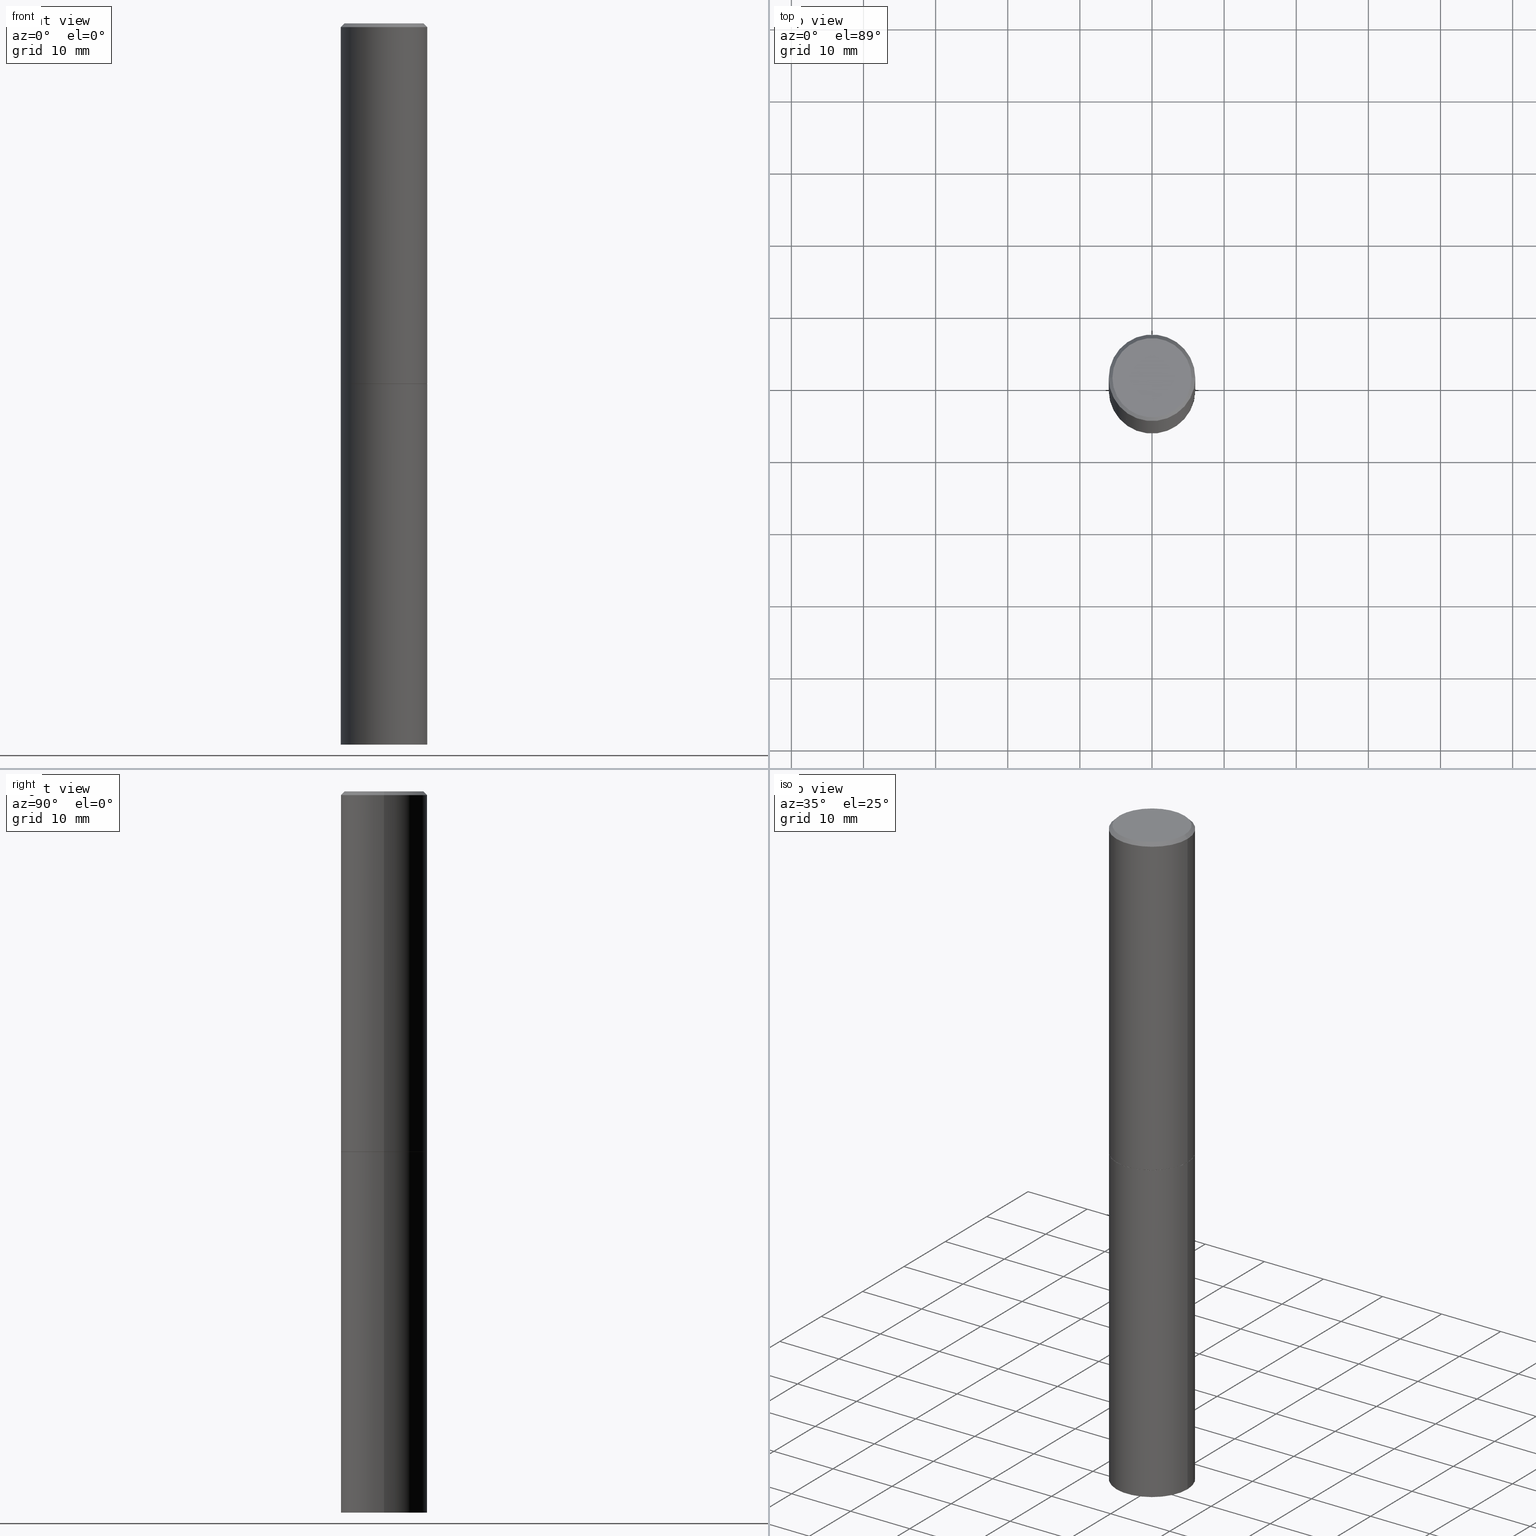
[diagram: canonical four-view strip — front | top / right | iso, engineering-drawing reading convention]
A machine part, canonical four-view strip (front | top / right | iso — engineering-drawing reading convention). The complete STEP part file that produces these views, byte-faithful:
ISO-10303-21;
HEADER;
FILE_DESCRIPTION (( 'STEP AP203' ),
    '1' );
FILE_NAME ('49446.STEP',
    '2024-02-28T21:28:15',
    ( '' ),
    ( '' ),
    'SwSTEP 2.0',
    'SolidWorks 2023',
    '' );
FILE_SCHEMA (( 'CONFIG_CONTROL_DESIGN' ));
ENDSEC;

DATA;
#1 = ORIENTED_EDGE ( 'NONE', *, *, #50, .T. ) ;
#2 = ADVANCED_BREP_SHAPE_REPRESENTATION ( '49446', ( #176, #311, #78 ), #264 ) ;
#3 = EDGE_CURVE ( 'NONE', #123, #167, #146, .T. ) ;
#4 = CARTESIAN_POINT ( 'NONE',  ( -0.2362000000000000210, -1.791357638610017633E-15, -1.967500000000000027 ) ) ;
#5 = APPLICATION_PROTOCOL_DEFINITION ( 'international standard', 'config_control_design', 1994, #75 ) ;
#6 = DIRECTION ( 'NONE',  ( -2.445468806185136597E-29, 3.491481338843145583E-15, 1.000000000000000000 ) ) ;
#7 = ORIENTED_EDGE ( 'NONE', *, *, #217, .T. ) ;
#8 = DIRECTION ( 'NONE',  ( 1.000000000000000000, -6.982962677686265133E-15, 0.000000000000000000 ) ) ;
#9 = AXIS2_PLACEMENT_3D ( 'NONE', #127, #222, #254 ) ;
#10 = CARTESIAN_POINT ( 'NONE',  ( -0.2161999999999997257, 1.544631344304200197E-15, 4.268512490089730842E-18 ) ) ;
#11 = PERSON_AND_ORGANIZATION ( #357, #312 ) ;
#12 = PLANE ( 'NONE',  #284 ) ;
#13 = AXIS2_PLACEMENT_3D ( 'NONE', #169, #289, #27 ) ;
#14 = CARTESIAN_POINT ( 'NONE',  ( 4.813905344975441835E-29, -6.872981015512731707E-15, -1.968500000000000139 ) ) ;
#15 = ORIENTED_EDGE ( 'NONE', *, *, #323, .F. ) ;
#16 = ORIENTED_EDGE ( 'NONE', *, *, #193, .F. ) ;
#17 = DIRECTION ( 'NONE',  ( -2.445468806185136877E-29, 3.491481338843145188E-15, 1.000000000000000000 ) ) ;
#18 = AXIS2_PLACEMENT_3D ( 'NONE', #320, #237, #287 ) ;
#19 = APPLICATION_CONTEXT ( 'configuration controlled 3d designs of mechanical parts and assemblies' ) ;
#20 = EDGE_LOOP ( 'NONE', ( #93, #306, #129, #119 ) ) ;
#21 = CARTESIAN_POINT ( 'NONE',  ( 0.2161999999999997257, -1.586759460484350213E-15, 4.268512490111238857E-18 ) ) ;
#22 = AXIS2_PLACEMENT_3D ( 'NONE', #335, #156, #154 ) ;
#23 = ADVANCED_FACE ( 'NONE', ( #150 ), #160, .T. ) ;
#24 = ORIENTED_EDGE ( 'NONE', *, *, #208, .T. ) ;
#25 = DIRECTION ( 'NONE',  ( -2.445468806185136597E-29, 3.491481338843145583E-15, 1.000000000000000000 ) ) ;
#26 = APPLICATION_PROTOCOL_DEFINITION ( 'international standard', 'config_control_design', 1994, #19 ) ;
#27 = DIRECTION ( 'NONE',  ( 1.000000000000000000, -6.982962677686266711E-15, 4.876176775795935793E-29 ) ) ;
#28 = PERSON_AND_ORGANIZATION_ROLE ( 'classification_officer' ) ;
#29 = CONICAL_SURFACE ( 'NONE', #179, 0.2351999999999999924, 0.7853981633974141952 ) ;
#30 = APPROVAL_STATUS ( 'not_yet_approved' ) ;
#31 = DIRECTION ( 'NONE',  ( 1.000000000000000000, -6.982962677686266711E-15, 4.876176775795936353E-29 ) ) ;
#32 = APPROVAL ( #113, 'UNSPECIFIED' ) ;
#33 = CARTESIAN_POINT ( 'NONE',  ( 9.627810689950883669E-29, -1.374596203102546341E-14, -3.937000000000000277 ) ) ;
#34 = ORIENTED_EDGE ( 'NONE', *, *, #61, .F. ) ;
#35 = CARTESIAN_POINT ( 'NONE',  ( 4.813905344975441835E-29, -6.872981015512731707E-15, -1.968500000000000139 ) ) ;
#36 = CIRCLE ( 'NONE', #249, 0.2361999999999999933 ) ;
#37 = CARTESIAN_POINT ( 'NONE',  ( -0.2361999999999999933, 1.678301941865356591E-15, -1.161852468318208757E-29 ) ) ;
#38 = DIRECTION ( 'NONE',  ( -0.7071067811865232589, 7.493145998870265808E-15, 0.7071067811865715536 ) ) ;
#39 = PRODUCT_RELATED_PRODUCT_CATEGORY ( 'detail', '', ( #106 ) ) ;
#40 = ORIENTED_EDGE ( 'NONE', *, *, #361, .F. ) ;
#41 = CLOSED_SHELL ( 'NONE', ( #74, #173, #266, #279, #23, #90, #260, #239 ) ) ;
#42 = CIRCLE ( 'NONE', #198, 0.2361999999999999933 ) ;
#43 = DIRECTION ( 'NONE',  ( -2.445468806185136597E-29, 3.491481338843145583E-15, 1.000000000000000000 ) ) ;
#44 = DIRECTION ( 'NONE',  ( 1.000000000000000000, -6.982962677686267499E-15, 4.876217060660161841E-29 ) ) ;
#45 = CARTESIAN_POINT ( 'NONE',  ( 0.2361999999999999933, -8.518865318643383648E-15, -1.967500000000000027 ) ) ;
#46 = AXIS2_PLACEMENT_3D ( 'NONE', #265, #25, #346 ) ;
#47 = ORIENTED_EDGE ( 'NONE', *, *, #277, .F. ) ;
#48 = PERSON_AND_ORGANIZATION ( #357, #312 ) ;
#49 = CARTESIAN_POINT ( 'NONE',  ( 0.2361999999999999933, -1.649375784469496131E-15, 1.151752954443000088E-29 ) ) ;
#50 = EDGE_CURVE ( 'NONE', #163, #123, #70, .T. ) ;
#51 = FACE_OUTER_BOUND ( 'NONE', #62, .T. ) ;
#52 = EDGE_LOOP ( 'NONE', ( #132, #307 ) ) ;
#53 = DIRECTION ( 'NONE',  ( 1.000000000000000000, -6.982962677686265133E-15, 0.000000000000000000 ) ) ;
#54 = DATE_TIME_ROLE ( 'classification_date' ) ;
#55 = PERSON_AND_ORGANIZATION ( #357, #312 ) ;
#56 = ADVANCED_FACE ( 'NONE', ( #322 ), #175, .T. ) ;
#57 = DIRECTION ( 'NONE',  ( -2.445468806185136597E-29, 3.491481338843145583E-15, 1.000000000000000000 ) ) ;
#58 = CARTESIAN_POINT ( 'NONE',  ( -0.2361999999999997712, 1.579546157692631452E-15, -0.02000000000000007674 ) ) ;
#59 = ORIENTED_EDGE ( 'NONE', *, *, #286, .T. ) ;
#60 = PERSON_AND_ORGANIZATION ( #357, #312 ) ;
#61 = EDGE_CURVE ( 'NONE', #167, #85, #267, .T. ) ;
#62 = EDGE_LOOP ( 'NONE', ( #69, #252 ) ) ;
#63 = APPROVAL_ROLE ( '' ) ;
#64 = DIRECTION ( 'NONE',  ( -2.445468806185136597E-29, 3.491481338843145583E-15, 1.000000000000000000 ) ) ;
#65 = EDGE_CURVE ( 'NONE', #324, #112, #291, .T. ) ;
#66 = CIRCLE ( 'NONE', #18, 0.2361999999999999933 ) ;
#67 = ORIENTED_EDGE ( 'NONE', *, *, #80, .T. ) ;
#68 = CC_DESIGN_PERSON_AND_ORGANIZATION_ASSIGNMENT ( #48, #158, ( #82 ) ) ;
#69 = ORIENTED_EDGE ( 'NONE', *, *, #161, .F. ) ;
#70 = CIRCLE ( 'NONE', #262, 0.2351999999999999924 ) ;
#71 = CIRCLE ( 'NONE', #95, 0.2361999999999997712 ) ;
#72 = PLANE ( 'NONE',  #22 ) ;
#73 = CARTESIAN_POINT ( 'NONE',  ( 0.2351999999999999924, -8.515373837304542218E-15, -1.968500000000000139 ) ) ;
#74 = ADVANCED_FACE ( 'NONE', ( #351 ), #185, .T. ) ;
#75 = APPLICATION_CONTEXT ( 'configuration controlled 3d designs of mechanical parts and assemblies' ) ;
#76 = DIRECTION ( 'NONE',  ( 1.000000000000000000, -6.982962677686267499E-15, 4.876217060660161841E-29 ) ) ;
#77 = DATE_AND_TIME ( #253, #103 ) ;
#78 = AXIS2_PLACEMENT_3D ( 'NONE', #231, #115, #263 ) ;
#79 = CARTESIAN_POINT ( 'NONE',  ( 0.2361999999999999933, -8.522356799982228232E-15, -1.968500000000000139 ) ) ;
#80 = EDGE_CURVE ( 'NONE', #83, #211, #98, .T. ) ;
#81 = ORIENTED_EDGE ( 'NONE', *, *, #217, .F. ) ;
#82 = PRODUCT_DEFINITION_FORMATION_WITH_SPECIFIED_SOURCE ( 'ANY', '', #106, .NOT_KNOWN. ) ;
#83 = VERTEX_POINT ( 'NONE', #234 ) ;
#84 = CYLINDRICAL_SURFACE ( 'NONE', #13, 0.2361999999999998545 ) ;
#85 = VERTEX_POINT ( 'NONE', #58 ) ;
#86 = PLANE ( 'NONE',  #318 ) ;
#87 = AXIS2_PLACEMENT_3D ( 'NONE', #125, #162, #76 ) ;
#88 = EDGE_LOOP ( 'NONE', ( #144, #24, #155, #194 ) ) ;
#89 = DIRECTION ( 'NONE',  ( 1.000000000000000000, -6.982962677686265133E-15, 0.000000000000000000 ) ) ;
#90 = ADVANCED_FACE ( 'NONE', ( #171 ), #29, .T. ) ;
#91 = ORIENTED_EDGE ( 'NONE', *, *, #3, .F. ) ;
#92 = CARTESIAN_POINT ( 'NONE',  ( -0.2361999999999999933, -8.631169581403741167E-15, -1.968500000000000139 ) ) ;
#93 = ORIENTED_EDGE ( 'NONE', *, *, #356, .F. ) ;
#94 = ORIENTED_EDGE ( 'NONE', *, *, #189, .F. ) ;
#95 = AXIS2_PLACEMENT_3D ( 'NONE', #275, #99, #274 ) ;
#96 = DIRECTION ( 'NONE',  ( -2.445468806185136597E-29, 3.491481338843145583E-15, 1.000000000000000000 ) ) ;
#97 = DIRECTION ( 'NONE',  ( 1.000000000000000000, -6.982962677686265133E-15, 0.000000000000000000 ) ) ;
#98 = CIRCLE ( 'NONE', #121, 0.2361999999999999933 ) ;
#99 = DIRECTION ( 'NONE',  ( -2.445468806185136597E-29, 3.491481338843145583E-15, 1.000000000000000000 ) ) ;
#100 = LINE ( 'NONE', #250, #299 ) ;
#101 = VERTEX_POINT ( 'NONE', #270 ) ;
#102 = DIRECTION ( 'NONE',  ( 0.7071067811865232589, -2.468850131082003836E-15, 0.7071067811865715536 ) ) ;
#103 = LOCAL_TIME ( 16, 28, 15.00000000000000000, #341 ) ;
#104 = CC_DESIGN_DATE_AND_TIME_ASSIGNMENT ( #196, #54, ( #164 ) ) ;
#105 = CARTESIAN_POINT ( 'NONE',  ( 0.2361999999999997712, -1.690279253850497193E-15, -0.02000000000000007674 ) ) ;
#106 = PRODUCT ( '49446', '49446', '', ( #200 ) ) ;
#107 = VERTEX_POINT ( 'NONE', #10 ) ;
#108 = DIRECTION ( 'NONE',  ( -2.445468806185136597E-29, 3.491481338843145583E-15, 1.000000000000000000 ) ) ;
#109 = VECTOR ( 'NONE', #38, 39.37007874015748854 ) ;
#110 = VECTOR ( 'NONE', #352, 39.37007874015748143 ) ;
#111 = CARTESIAN_POINT ( 'NONE',  ( 0.000000000000000000, 0.000000000000000000, 0.000000000000000000 ) ) ;
#112 = VERTEX_POINT ( 'NONE', #92 ) ;
#113 = APPROVAL_STATUS ( 'not_yet_approved' ) ;
#114 = DIRECTION ( 'NONE',  ( 2.438088387897960049E-29, -3.491481338843145188E-15, -1.000000000000000000 ) ) ;
#115 = DIRECTION ( 'NONE',  ( 0.000000000000000000, 0.000000000000000000, 1.000000000000000000 ) ) ;
#116 = CC_DESIGN_DATE_AND_TIME_ASSIGNMENT ( #180, #300, ( #213 ) ) ;
#117 = DIRECTION ( 'NONE',  ( -2.445468806185136597E-29, 3.491481338843145583E-15, 1.000000000000000000 ) ) ;
#118 = VECTOR ( 'NONE', #102, 39.37007874015748854 ) ;
#119 = ORIENTED_EDGE ( 'NONE', *, *, #246, .T. ) ;
#120 = LINE ( 'NONE', #37, #165 ) ;
#121 = AXIS2_PLACEMENT_3D ( 'NONE', #240, #296, #8 ) ;
#122 = DIRECTION ( 'NONE',  ( 1.000000000000000000, -6.982962677686265922E-15, 4.876176775795935793E-29 ) ) ;
#123 = VERTEX_POINT ( 'NONE', #212 ) ;
#124 = AXIS2_PLACEMENT_3D ( 'NONE', #35, #108, #330 ) ;
#125 = CARTESIAN_POINT ( 'NONE',  ( -1.043851414335219820E-46, 1.490343170380447200E-32, 4.268512490100411279E-18 ) ) ;
#126 = APPROVAL_ROLE ( '' ) ;
#127 = CARTESIAN_POINT ( 'NONE',  ( 1.649375784469592175E-15, 0.2361999999999862265, -3.937000000000001165 ) ) ;
#128 = ADVANCED_FACE ( 'NONE', ( #145 ), #86, .F. ) ;
#129 = ORIENTED_EDGE ( 'NONE', *, *, #301, .T. ) ;
#130 = PERSON_AND_ORGANIZATION ( #357, #312 ) ;
#131 = PLANE ( 'NONE',  #9 ) ;
#132 = ORIENTED_EDGE ( 'NONE', *, *, #65, .T. ) ;
#133 = AXIS2_PLACEMENT_3D ( 'NONE', #245, #187, #359 ) ;
#134 = CALENDAR_DATE ( 2024, 28, 2 ) ;
#135 = EDGE_LOOP ( 'NONE', ( #138, #81 ) ) ;
#136 =( CONVERSION_BASED_UNIT ( 'INCH', #224 ) LENGTH_UNIT ( ) NAMED_UNIT ( #202 ) );
#137 = CARTESIAN_POINT ( 'NONE',  ( 0.2351999999999999924, -8.515373837304542218E-15, -1.968500000000000139 ) ) ;
#138 = ORIENTED_EDGE ( 'NONE', *, *, #50, .F. ) ;
#139 = PERSON_AND_ORGANIZATION ( #357, #312 ) ;
#140 = DIRECTION ( 'NONE',  ( -1.000000000000000000, 6.982962677686265922E-15, -4.876176775795935793E-29 ) ) ;
#141 = AXIS2_PLACEMENT_3D ( 'NONE', #111, #64, #31 ) ;
#142 = EDGE_CURVE ( 'NONE', #112, #324, #66, .T. ) ;
#143 = DIRECTION ( 'NONE',  ( 1.000000000000000000, -6.982962677686264344E-15, 0.000000000000000000 ) ) ;
#144 = ORIENTED_EDGE ( 'NONE', *, *, #161, .T. ) ;
#145 = FACE_OUTER_BOUND ( 'NONE', #52, .T. ) ;
#146 = LINE ( 'NONE', #182, #109 ) ;
#147 = CARTESIAN_POINT ( 'NONE',  ( 4.813905344975441835E-29, -6.872981015512731707E-15, -1.968500000000000139 ) ) ;
#148 = CIRCLE ( 'NONE', #226, 0.2361999999999999933 ) ;
#149 = DIRECTION ( 'NONE',  ( 2.445468806185136597E-29, -3.491481338843145583E-15, -1.000000000000000000 ) ) ;
#150 = FACE_OUTER_BOUND ( 'NONE', #203, .T. ) ;
#151 = FACE_OUTER_BOUND ( 'NONE', #235, .T. ) ;
#152 = ADVANCED_FACE ( 'NONE', ( #327 ), #347, .T. ) ;
#153 = CALENDAR_DATE ( 2024, 28, 2 ) ;
#154 = DIRECTION ( 'NONE',  ( -1.000000000000000000, 6.982962677686265922E-15, -4.876176775795935793E-29 ) ) ;
#155 = ORIENTED_EDGE ( 'NONE', *, *, #65, .F. ) ;
#156 = DIRECTION ( 'NONE',  ( 2.438088387897960049E-29, -3.491481338843145188E-15, -1.000000000000000000 ) ) ;
#157 = DIRECTION ( 'NONE',  ( -2.445468806185136597E-29, 3.491481338843145583E-15, 1.000000000000000000 ) ) ;
#158 = PERSON_AND_ORGANIZATION_ROLE ( 'creator' ) ;
#159 = DIRECTION ( 'NONE',  ( -2.445468806185136877E-29, 3.491481338843145188E-15, 1.000000000000000000 ) ) ;
#160 = CYLINDRICAL_SURFACE ( 'NONE', #303, 0.2361999999999998545 ) ;
#161 = EDGE_CURVE ( 'NONE', #211, #83, #42, .T. ) ;
#162 = DIRECTION ( 'NONE',  ( -2.445468806185136597E-29, 3.491481338843145583E-15, 1.000000000000000000 ) ) ;
#163 = VERTEX_POINT ( 'NONE', #137 ) ;
#164 = SECURITY_CLASSIFICATION ( '', '', #204 ) ;
#165 = VECTOR ( 'NONE', #218, 39.37007874015748143 ) ;
#166 = CARTESIAN_POINT ( 'NONE',  ( 1.649375784469544054E-15, 0.2361999999999931377, -1.968500000000000805 ) ) ;
#167 = VERTEX_POINT ( 'NONE', #4 ) ;
#168 = CALENDAR_DATE ( 2024, 28, 2 ) ;
#169 = CARTESIAN_POINT ( 'NONE',  ( 0.000000000000000000, 0.000000000000000000, 0.000000000000000000 ) ) ;
#170 = PERSON_AND_ORGANIZATION_ROLE ( 'design_owner' ) ;
#171 = FACE_OUTER_BOUND ( 'NONE', #313, .T. ) ;
#172 = AXIS2_PLACEMENT_3D ( 'NONE', #337, #96, #44 ) ;
#173 = ADVANCED_FACE ( 'NONE', ( #344 ), #84, .T. ) ;
#174 = COORDINATED_UNIVERSAL_TIME_OFFSET ( 5, 0, .BEHIND. ) ;
#175 = CYLINDRICAL_SURFACE ( 'NONE', #141, 0.2361999999999999933 ) ;
#176 = MANIFOLD_SOLID_BREP ( 'Body-Move/Copy2[1]', #215 ) ;
#177 = DIRECTION ( 'NONE',  ( -2.445468806185136597E-29, 3.491481338843145583E-15, 1.000000000000000000 ) ) ;
#178 = APPROVAL_PERSON_ORGANIZATION ( #55, #228, #63 ) ;
#179 = AXIS2_PLACEMENT_3D ( 'NONE', #292, #207, #201 ) ;
#180 = DATE_AND_TIME ( #153, #184 ) ;
#181 = CARTESIAN_POINT ( 'NONE',  ( 0.2361999999999999933, -1.539533781549495994E-14, -3.937000000000000277 ) ) ;
#182 = CARTESIAN_POINT ( 'NONE',  ( -0.2351999999999999924, -5.201784501004976321E-15, -1.968500000000000139 ) ) ;
#183 = COORDINATED_UNIVERSAL_TIME_OFFSET ( 5, 0, .BEHIND. ) ;
#184 = LOCAL_TIME ( 16, 28, 15.00000000000000000, #183 ) ;
#185 = CONICAL_SURFACE ( 'NONE', #304, 0.2351999999999999924, 0.7853981633974141952 ) ;
#186 = ORIENTED_EDGE ( 'NONE', *, *, #268, .T. ) ;
#187 = DIRECTION ( 'NONE',  ( -2.445468806185136597E-29, 3.491481338843145583E-15, 1.000000000000000000 ) ) ;
#188 = ORIENTED_EDGE ( 'NONE', *, *, #3, .T. ) ;
#189 = EDGE_CURVE ( 'NONE', #302, #107, #350, .T. ) ;
#190 = DIRECTION ( 'NONE',  ( -0.7071067811865465735, 2.468850131082246805E-15, -0.7071067811865484609 ) ) ;
#191 = EDGE_LOOP ( 'NONE', ( #345, #328, #15, #298 ) ) ;
#192 = DIRECTION ( 'NONE',  ( -2.445468806185136597E-29, 3.491481338843145583E-15, 1.000000000000000000 ) ) ;
#193 = EDGE_CURVE ( 'NONE', #167, #280, #148, .T. ) ;
#194 = ORIENTED_EDGE ( 'NONE', *, *, #268, .F. ) ;
#195 = CARTESIAN_POINT ( 'NONE',  ( 4.890937612370292426E-31, -6.982962677686317493E-17, -0.02000000000000007674 ) ) ;
#196 = DATE_AND_TIME ( #288, #244 ) ;
#197 = CC_DESIGN_APPROVAL ( #241, ( #82 ) ) ;
#198 = AXIS2_PLACEMENT_3D ( 'NONE', #33, #117, #89 ) ;
#199 = ORIENTED_EDGE ( 'NONE', *, *, #301, .F. ) ;
#200 = MECHANICAL_CONTEXT ( 'NONE', #19, 'mechanical' ) ;
#201 = DIRECTION ( 'NONE',  ( 1.000000000000000000, -6.982962677686264344E-15, 0.000000000000000000 ) ) ;
#202 = DIMENSIONAL_EXPONENTS ( 1.000000000000000000, 0.000000000000000000, 0.000000000000000000, 0.000000000000000000, 0.000000000000000000, 0.000000000000000000, 0.000000000000000000 ) ;
#203 = EDGE_LOOP ( 'NONE', ( #34, #283, #59, #242 ) ) ;
#204 = SECURITY_CLASSIFICATION_LEVEL ( 'unclassified' ) ;
#205 = CARTESIAN_POINT ( 'NONE',  ( -0.2361999999999998545, 1.678301941865355605E-15, -1.161852468318208056E-29 ) ) ;
#206 = EDGE_LOOP ( 'NONE', ( #362, #67, #186, #321 ) ) ;
#207 = DIRECTION ( 'NONE',  ( -2.445468806185136597E-29, 3.491481338843145583E-15, 1.000000000000000000 ) ) ;
#208 = EDGE_CURVE ( 'NONE', #83, #112, #120, .T. ) ;
#209 = VECTOR ( 'NONE', #17, 39.37007874015748143 ) ;
#210 = VECTOR ( 'NONE', #159, 39.37007874015748143 ) ;
#211 = VERTEX_POINT ( 'NONE', #181 ) ;
#212 = CARTESIAN_POINT ( 'NONE',  ( -0.2351999999999999924, -5.196486046656753130E-15, -1.968500000000000139 ) ) ;
#213 = PRODUCT_DEFINITION ( 'UNKNOWN', '', #82, #257 ) ;
#214 = FACE_OUTER_BOUND ( 'NONE', #216, .T. ) ;
#215 = CLOSED_SHELL ( 'NONE', ( #152, #305, #128, #56 ) ) ;
#216 = EDGE_LOOP ( 'NONE', ( #94, #220, #243, #199 ) ) ;
#217 = EDGE_CURVE ( 'NONE', #123, #163, #326, .T. ) ;
#218 = DIRECTION ( 'NONE',  ( -2.445468806185136877E-29, 3.491481338843145188E-15, 1.000000000000000000 ) ) ;
#219 = AXIS2_PLACEMENT_3D ( 'NONE', #195, #343, #360 ) ;
#220 = ORIENTED_EDGE ( 'NONE', *, *, #356, .T. ) ;
#221 =( NAMED_UNIT ( * ) PLANE_ANGLE_UNIT ( ) SI_UNIT ( $, .RADIAN. ) );
#222 = DIRECTION ( 'NONE',  ( 2.438088387897960049E-29, -3.491481338843145188E-15, -1.000000000000000000 ) ) ;
#223 = CC_DESIGN_PERSON_AND_ORGANIZATION_ASSIGNMENT ( #130, #319, ( #82 ) ) ;
#224 = LENGTH_MEASURE_WITH_UNIT ( LENGTH_MEASURE( 0.02539999999999999897 ), #251 );
#225 = CC_DESIGN_APPROVAL ( #32, ( #164 ) ) ;
#226 = AXIS2_PLACEMENT_3D ( 'NONE', #248, #43, #97 ) ;
#227 = DIRECTION ( 'NONE',  ( 0.7071067811865465735, -7.319954787623252890E-15, -0.7071067811865484609 ) ) ;
#228 = APPROVAL ( #30, 'UNSPECIFIED' ) ;
#229 = APPROVAL_DATE_TIME ( #269, #228 ) ;
#230 = CC_DESIGN_SECURITY_CLASSIFICATION ( #164, ( #82 ) ) ;
#231 = CARTESIAN_POINT ( 'NONE',  ( 0.000000000000000000, 0.000000000000000000, 0.000000000000000000 ) ) ;
#232 = CONICAL_SURFACE ( 'NONE', #219, 0.2361999999999997712, 0.7853981633974469467 ) ;
#233 = DIRECTION ( 'NONE',  ( 1.000000000000000000, -6.982962677686264344E-15, 0.000000000000000000 ) ) ;
#234 = CARTESIAN_POINT ( 'NONE',  ( -0.2361999999999999933, -8.631169581403741167E-15, -3.937000000000000277 ) ) ;
#235 = EDGE_LOOP ( 'NONE', ( #336, #293 ) ) ;
#236 = APPROVAL_ROLE ( '' ) ;
#237 = DIRECTION ( 'NONE',  ( -2.445468806185136597E-29, 3.491481338843145583E-15, 1.000000000000000000 ) ) ;
#238 = CARTESIAN_POINT ( 'NONE',  ( 4.813905344975441835E-29, -6.872981015512731707E-15, -1.968500000000000139 ) ) ;
#239 = ADVANCED_FACE ( 'NONE', ( #151 ), #72, .F. ) ;
#240 = CARTESIAN_POINT ( 'NONE',  ( 9.627810689950883669E-29, -1.374596203102546341E-14, -3.937000000000000277 ) ) ;
#241 = APPROVAL ( #354, 'UNSPECIFIED' ) ;
#242 = ORIENTED_EDGE ( 'NONE', *, *, #246, .F. ) ;
#243 = ORIENTED_EDGE ( 'NONE', *, *, #323, .T. ) ;
#244 = LOCAL_TIME ( 16, 28, 15.00000000000000000, #294 ) ;
#245 = CARTESIAN_POINT ( 'NONE',  ( 4.813905344975441835E-29, -6.872981015512731707E-15, -1.968500000000000139 ) ) ;
#246 = EDGE_CURVE ( 'NONE', #85, #101, #71, .T. ) ;
#247 = EDGE_LOOP ( 'NONE', ( #1, #188, #40, #47 ) ) ;
#248 = CARTESIAN_POINT ( 'NONE',  ( 4.811459876169256232E-29, -6.869489534173888700E-15, -1.967500000000000027 ) ) ;
#249 = AXIS2_PLACEMENT_3D ( 'NONE', #340, #157, #53 ) ;
#250 = CARTESIAN_POINT ( 'NONE',  ( -0.2361999999999997712, 1.579546157692631452E-15, -0.02000000000000007674 ) ) ;
#251 =( LENGTH_UNIT ( ) NAMED_UNIT ( * ) SI_UNIT ( $, .METRE. ) );
#252 = ORIENTED_EDGE ( 'NONE', *, *, #80, .F. ) ;
#253 = CALENDAR_DATE ( 2024, 28, 2 ) ;
#254 = DIRECTION ( 'NONE',  ( -1.000000000000000000, 6.982962677686265922E-15, -4.876176775795935793E-29 ) ) ;
#255 = CIRCLE ( 'NONE', #355, 0.2361999999999997712 ) ;
#256 = DIRECTION ( 'NONE',  ( 1.000000000000000000, -6.982962677686266711E-15, 0.000000000000000000 ) ) ;
#257 = DESIGN_CONTEXT ( 'detailed design', #75, 'design' ) ;
#258 = PERSON_AND_ORGANIZATION ( #357, #312 ) ;
#259 = DIRECTION ( 'NONE',  ( 1.000000000000000000, -6.982962677686266711E-15, 4.876176775795935793E-29 ) ) ;
#260 = ADVANCED_FACE ( 'NONE', ( #332 ), #12, .F. ) ;
#261 = LOCAL_TIME ( 16, 28, 15.00000000000000000, #325 ) ;
#262 = AXIS2_PLACEMENT_3D ( 'NONE', #238, #177, #233 ) ;
#263 = DIRECTION ( 'NONE',  ( 1.000000000000000000, 0.000000000000000000, 0.000000000000000000 ) ) ;
#264 =( GEOMETRIC_REPRESENTATION_CONTEXT ( 3 ) GLOBAL_UNCERTAINTY_ASSIGNED_CONTEXT ( ( #309 ) ) GLOBAL_UNIT_ASSIGNED_CONTEXT ( ( #136, #221, #295 ) ) REPRESENTATION_CONTEXT ( 'NONE', 'WORKASPACE' ) );
#265 = CARTESIAN_POINT ( 'NONE',  ( 0.000000000000000000, 0.000000000000000000, 0.000000000000000000 ) ) ;
#266 = ADVANCED_FACE ( 'NONE', ( #214 ), #338, .T. ) ;
#267 = LINE ( 'NONE', #205, #110 ) ;
#268 = EDGE_CURVE ( 'NONE', #211, #324, #315, .T. ) ;
#269 = DATE_AND_TIME ( #168, #358 ) ;
#270 = CARTESIAN_POINT ( 'NONE',  ( 0.2361999999999997712, -1.690279253850497193E-15, -0.02000000000000007674 ) ) ;
#271 = CIRCLE ( 'NONE', #87, 0.2161999999999997257 ) ;
#272 = DIRECTION ( 'NONE',  ( -2.438088387897960049E-29, 3.491481338843145188E-15, 1.000000000000000000 ) ) ;
#273 = DATE_AND_TIME ( #134, #261 ) ;
#274 = DIRECTION ( 'NONE',  ( 1.000000000000000000, -6.982962677686266711E-15, 0.000000000000000000 ) ) ;
#275 = CARTESIAN_POINT ( 'NONE',  ( 4.890937612370292426E-31, -6.982962677686317493E-17, -0.02000000000000007674 ) ) ;
#276 = CARTESIAN_POINT ( 'NONE',  ( 0.2361999999999998545, -1.649375784469495145E-15, 1.151752954442999387E-29 ) ) ;
#277 = EDGE_CURVE ( 'NONE', #163, #280, #363, .T. ) ;
#278 = VECTOR ( 'NONE', #227, 39.37007874015748143 ) ;
#279 = ADVANCED_FACE ( 'NONE', ( #310 ), #232, .T. ) ;
#280 = VERTEX_POINT ( 'NONE', #45 ) ;
#281 = LINE ( 'NONE', #105, #278 ) ;
#282 = CARTESIAN_POINT ( 'NONE',  ( 0.000000000000000000, 0.000000000000000000, 0.000000000000000000 ) ) ;
#283 = ORIENTED_EDGE ( 'NONE', *, *, #193, .T. ) ;
#284 = AXIS2_PLACEMENT_3D ( 'NONE', #14, #272, #122 ) ;
#285 = ORIENTED_EDGE ( 'NONE', *, *, #277, .T. ) ;
#286 = EDGE_CURVE ( 'NONE', #280, #101, #316, .T. ) ;
#287 = DIRECTION ( 'NONE',  ( 1.000000000000000000, -6.982962677686269077E-15, 0.000000000000000000 ) ) ;
#288 = CALENDAR_DATE ( 2024, 28, 2 ) ;
#289 = DIRECTION ( 'NONE',  ( -2.445468806185136597E-29, 3.491481338843145583E-15, 1.000000000000000000 ) ) ;
#290 = APPROVAL_PERSON_ORGANIZATION ( #258, #32, #236 ) ;
#291 = CIRCLE ( 'NONE', #124, 0.2361999999999999933 ) ;
#292 = CARTESIAN_POINT ( 'NONE',  ( 4.813905344975441835E-29, -6.872981015512731707E-15, -1.968500000000000139 ) ) ;
#293 = ORIENTED_EDGE ( 'NONE', *, *, #189, .T. ) ;
#294 = COORDINATED_UNIVERSAL_TIME_OFFSET ( 5, 0, .BEHIND. ) ;
#295 =( NAMED_UNIT ( * ) SI_UNIT ( $, .STERADIAN. ) SOLID_ANGLE_UNIT ( ) );
#296 = DIRECTION ( 'NONE',  ( -2.445468806185136597E-29, 3.491481338843145583E-15, 1.000000000000000000 ) ) ;
#297 = APPROVAL_DATE_TIME ( #273, #32 ) ;
#298 = ORIENTED_EDGE ( 'NONE', *, *, #286, .F. ) ;
#299 = VECTOR ( 'NONE', #190, 39.37007874015748143 ) ;
#300 = DATE_TIME_ROLE ( 'creation_date' ) ;
#301 = EDGE_CURVE ( 'NONE', #107, #85, #100, .T. ) ;
#302 = VERTEX_POINT ( 'NONE', #21 ) ;
#303 = AXIS2_PLACEMENT_3D ( 'NONE', #282, #6, #259 ) ;
#304 = AXIS2_PLACEMENT_3D ( 'NONE', #147, #57, #143 ) ;
#305 = ADVANCED_FACE ( 'NONE', ( #51 ), #131, .T. ) ;
#306 = ORIENTED_EDGE ( 'NONE', *, *, #342, .F. ) ;
#307 = ORIENTED_EDGE ( 'NONE', *, *, #142, .T. ) ;
#308 = CC_DESIGN_PERSON_AND_ORGANIZATION_ASSIGNMENT ( #329, #170, ( #106 ) ) ;
#309 = UNCERTAINTY_MEASURE_WITH_UNIT (LENGTH_MEASURE( 1.000000000000000082E-05 ), #136, 'distance_accuracy_value', 'NONE');
#310 = FACE_OUTER_BOUND ( 'NONE', #20, .T. ) ;
#311 = MANIFOLD_SOLID_BREP ( 'Body-Move/Copy2[2]', #41 ) ;
#312 = ORGANIZATION ( 'UNSPECIFIED', 'UNSPECIFIED', '' ) ;
#313 = EDGE_LOOP ( 'NONE', ( #91, #7, #285, #16 ) ) ;
#314 = APPROVAL_DATE_TIME ( #77, #241 ) ;
#315 = LINE ( 'NONE', #49, #210 ) ;
#316 = LINE ( 'NONE', #276, #209 ) ;
#317 = APPROVAL_PERSON_ORGANIZATION ( #11, #241, #126 ) ;
#318 = AXIS2_PLACEMENT_3D ( 'NONE', #166, #114, #140 ) ;
#319 = PERSON_AND_ORGANIZATION_ROLE ( 'design_supplier' ) ;
#320 = CARTESIAN_POINT ( 'NONE',  ( 4.813905344975441835E-29, -6.872981015512731707E-15, -1.968500000000000139 ) ) ;
#321 = ORIENTED_EDGE ( 'NONE', *, *, #142, .F. ) ;
#322 = FACE_OUTER_BOUND ( 'NONE', #206, .T. ) ;
#323 = EDGE_CURVE ( 'NONE', #101, #85, #255, .T. ) ;
#324 = VERTEX_POINT ( 'NONE', #79 ) ;
#325 = COORDINATED_UNIVERSAL_TIME_OFFSET ( 5, 0, .BEHIND. ) ;
#326 = CIRCLE ( 'NONE', #133, 0.2351999999999999924 ) ;
#327 = FACE_OUTER_BOUND ( 'NONE', #88, .T. ) ;
#328 = ORIENTED_EDGE ( 'NONE', *, *, #61, .T. ) ;
#329 = PERSON_AND_ORGANIZATION ( #357, #312 ) ;
#330 = DIRECTION ( 'NONE',  ( 1.000000000000000000, -6.982962677686269077E-15, 0.000000000000000000 ) ) ;
#331 = SHAPE_DEFINITION_REPRESENTATION ( #349, #2 ) ;
#332 = FACE_OUTER_BOUND ( 'NONE', #135, .T. ) ;
#333 = PERSON_AND_ORGANIZATION_ROLE ( 'creator' ) ;
#334 = CARTESIAN_POINT ( 'NONE',  ( 4.890937612370292426E-31, -6.982962677686317493E-17, -0.02000000000000007674 ) ) ;
#335 = CARTESIAN_POINT ( 'NONE',  ( 1.509716530915768746E-15, 0.2161999999999997257, -7.527240092128370190E-16 ) ) ;
#336 = ORIENTED_EDGE ( 'NONE', *, *, #342, .T. ) ;
#337 = CARTESIAN_POINT ( 'NONE',  ( -1.043851414335219820E-46, 1.490343170380447200E-32, 4.268512490100411279E-18 ) ) ;
#338 = CONICAL_SURFACE ( 'NONE', #366, 0.2361999999999997712, 0.7853981633974469467 ) ;
#339 = DIRECTION ( 'NONE',  ( -1.000000000000000000, 6.982962677686266711E-15, 0.000000000000000000 ) ) ;
#340 = CARTESIAN_POINT ( 'NONE',  ( 4.811459876169256232E-29, -6.869489534173888700E-15, -1.967500000000000027 ) ) ;
#341 = COORDINATED_UNIVERSAL_TIME_OFFSET ( 5, 0, .BEHIND. ) ;
#342 = EDGE_CURVE ( 'NONE', #107, #302, #271, .T. ) ;
#343 = DIRECTION ( 'NONE',  ( 2.445468806185136597E-29, -3.491481338843145583E-15, -1.000000000000000000 ) ) ;
#344 = FACE_OUTER_BOUND ( 'NONE', #191, .T. ) ;
#345 = ORIENTED_EDGE ( 'NONE', *, *, #361, .T. ) ;
#346 = DIRECTION ( 'NONE',  ( 1.000000000000000000, -6.982962677686266711E-15, 4.876176775795936353E-29 ) ) ;
#347 = CYLINDRICAL_SURFACE ( 'NONE', #46, 0.2361999999999999933 ) ;
#348 = CC_DESIGN_APPROVAL ( #228, ( #213 ) ) ;
#349 = PRODUCT_DEFINITION_SHAPE ( 'NONE', 'NONE',  #213 ) ;
#350 = CIRCLE ( 'NONE', #172, 0.2161999999999997257 ) ;
#351 = FACE_OUTER_BOUND ( 'NONE', #247, .T. ) ;
#352 = DIRECTION ( 'NONE',  ( -2.445468806185136877E-29, 3.491481338843145188E-15, 1.000000000000000000 ) ) ;
#353 = CC_DESIGN_PERSON_AND_ORGANIZATION_ASSIGNMENT ( #139, #333, ( #213 ) ) ;
#354 = APPROVAL_STATUS ( 'not_yet_approved' ) ;
#355 = AXIS2_PLACEMENT_3D ( 'NONE', #365, #192, #256 ) ;
#356 = EDGE_CURVE ( 'NONE', #302, #101, #281, .T. ) ;
#357 = PERSON ( 'UNSPECIFIED', 'UNSPECIFIED', 'UNSPECIFIED', ('UNSPECIFIED'), ('UNSPECIFIED'), ('UNSPECIFIED') ) ;
#358 = LOCAL_TIME ( 16, 28, 15.00000000000000000, #174 ) ;
#359 = DIRECTION ( 'NONE',  ( 1.000000000000000000, -6.982962677686264344E-15, 0.000000000000000000 ) ) ;
#360 = DIRECTION ( 'NONE',  ( -1.000000000000000000, 6.982962677686266711E-15, 0.000000000000000000 ) ) ;
#361 = EDGE_CURVE ( 'NONE', #280, #167, #36, .T. ) ;
#362 = ORIENTED_EDGE ( 'NONE', *, *, #208, .F. ) ;
#363 = LINE ( 'NONE', #73, #118 ) ;
#364 = CC_DESIGN_PERSON_AND_ORGANIZATION_ASSIGNMENT ( #60, #28, ( #164 ) ) ;
#365 = CARTESIAN_POINT ( 'NONE',  ( 4.890937612370292426E-31, -6.982962677686317493E-17, -0.02000000000000007674 ) ) ;
#366 = AXIS2_PLACEMENT_3D ( 'NONE', #334, #149, #339 ) ;
ENDSEC;
END-ISO-10303-21;
